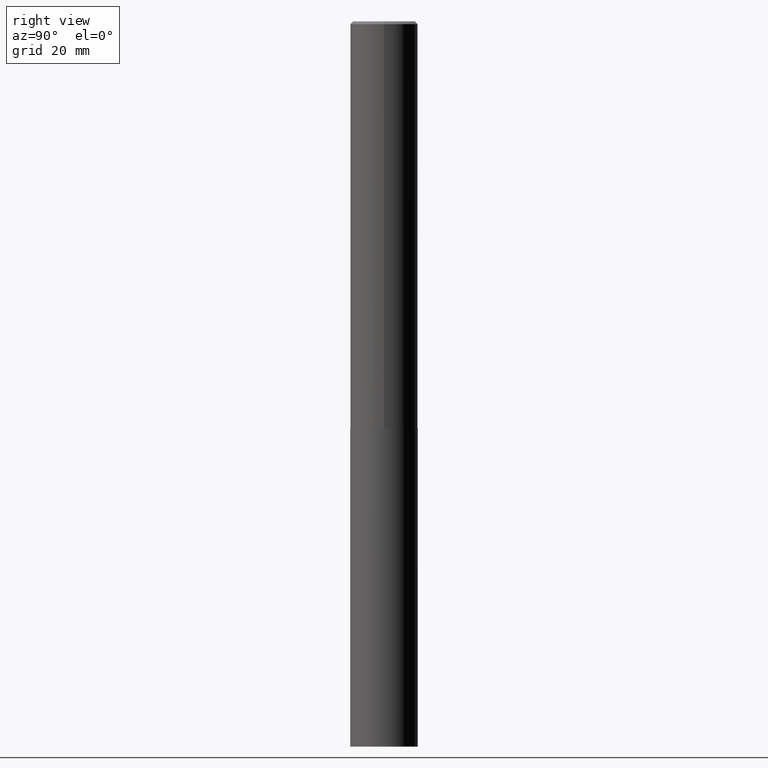
[diagram: clean part render]
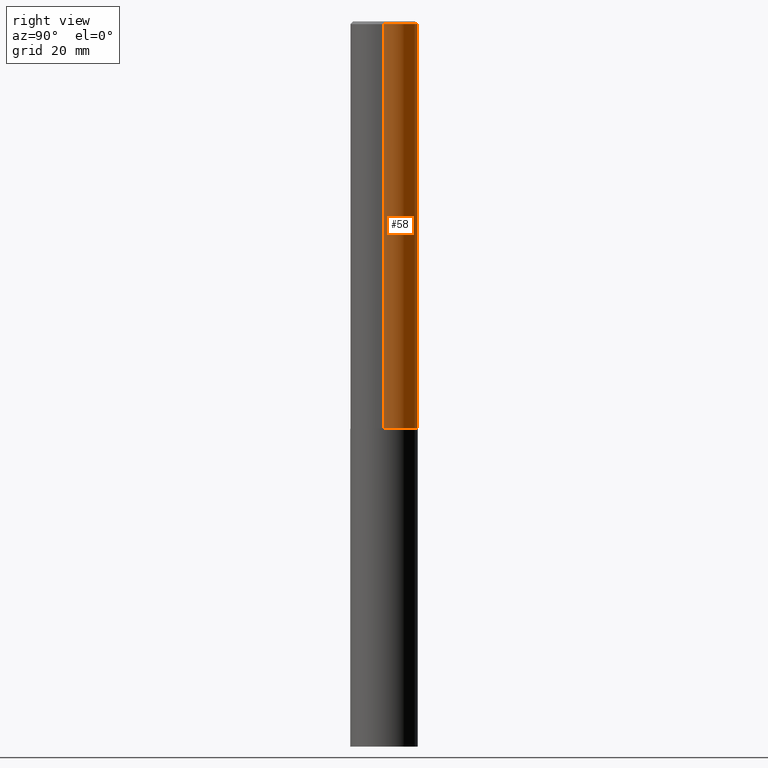
[diagram: same view with one face highlighted and labeled with its STEP entity id]
A machine part, right view. The second image highlights one B-rep face of the part: STEP entity #58.
In plain terms, the highlighted cylindrical surface (edge-blend (fillet) strip) has radius 10 mm, axis along (-0, 0, 1).
Its self-contained STEP definition (entity closure, byte-faithful):
#4 = CARTESIAN_POINT ( 'NONE',  ( 0.000000000000000000, 0.000000000000000000, 0.000000000000000000 ) ) ;
#12 = ORIENTED_EDGE ( 'NONE', *, *, #160, .T. ) ;
#34 = ORIENTED_EDGE ( 'NONE', *, *, #88, .F. ) ;
#42 = DIRECTION ( 'NONE',  ( -2.445468806185136597E-29, 3.491481338843145583E-15, 1.000000000000000000 ) ) ;
#47 = LINE ( 'NONE', #265, #310 ) ;
#56 = CIRCLE ( 'NONE', #288, 0.3937000000000006605 ) ;
#57 = VERTEX_POINT ( 'NONE', #202 ) ;
#58 = ADVANCED_FACE ( 'NONE', ( #343 ), #69, .T. ) ;
#63 = VERTEX_POINT ( 'NONE', #257 ) ;
#69 = CYLINDRICAL_SURFACE ( 'NONE', #284, 0.3937000000000003830 ) ;
#81 = LINE ( 'NONE', #133, #142 ) ;
#88 = EDGE_CURVE ( 'NONE', #57, #366, #117, .T. ) ;
#99 = CARTESIAN_POINT ( 'NONE',  ( 7.642090019328588649E-31, -1.091087918388488171E-16, -0.03125000000000014572 ) ) ;
#104 = CARTESIAN_POINT ( 'NONE',  ( 1.162355778267857779E-28, -1.659535995165536539E-14, -4.753100000000002545 ) ) ;
#117 = CIRCLE ( 'NONE', #332, 0.3937000000000001054 ) ;
#121 = ORIENTED_EDGE ( 'NONE', *, *, #141, .F. ) ;
#133 = CARTESIAN_POINT ( 'NONE',  ( -0.3937000000000003830, 2.797406750687517153E-15, -1.936584745033358137E-29 ) ) ;
#141 = EDGE_CURVE ( 'NONE', #63, #57, #47, .T. ) ;
#142 = VECTOR ( 'NONE', #186, 39.37007874015748143 ) ;
#153 = EDGE_CURVE ( 'NONE', #63, #313, #56, .T. ) ;
#160 = EDGE_CURVE ( 'NONE', #313, #366, #81, .T. ) ;
#163 = EDGE_LOOP ( 'NONE', ( #307, #12, #34, #121 ) ) ;
#186 = DIRECTION ( 'NONE',  ( -2.445468806185136877E-29, 3.491481338843145188E-15, 1.000000000000000000 ) ) ;
#202 = CARTESIAN_POINT ( 'NONE',  ( 0.3937000000000001054, -2.858301198043932712E-15, -0.03125000000000014572 ) ) ;
#207 = DIRECTION ( 'NONE',  ( -2.445468806185136597E-29, 3.491481338843145583E-15, 1.000000000000000000 ) ) ;
#226 = DIRECTION ( 'NONE',  ( 1.000000000000000000, -6.982962677686266711E-15, 0.000000000000000000 ) ) ;
#240 = DIRECTION ( 'NONE',  ( -2.445468806185136877E-29, 3.491481338843145188E-15, 1.000000000000000000 ) ) ;
#247 = CARTESIAN_POINT ( 'NONE',  ( -0.3937000000000001054, -5.554827621059586937E-15, -0.03125000000000014572 ) ) ;
#257 = CARTESIAN_POINT ( 'NONE',  ( 0.3937000000000006605, -1.934455235786044861E-14, -4.753100000000002545 ) ) ;
#259 = DIRECTION ( 'NONE',  ( 1.000000000000000000, -6.982962677686266711E-15, 4.876176775795935793E-29 ) ) ;
#265 = CARTESIAN_POINT ( 'NONE',  ( 0.3937000000000003830, -2.749192406205085978E-15, 1.919750796630861853E-29 ) ) ;
#273 = DIRECTION ( 'NONE',  ( -2.445468806185136597E-29, 3.491481338843145583E-15, 1.000000000000000000 ) ) ;
#284 = AXIS2_PLACEMENT_3D ( 'NONE', #4, #42, #259 ) ;
#288 = AXIS2_PLACEMENT_3D ( 'NONE', #104, #273, #298 ) ;
#289 = CARTESIAN_POINT ( 'NONE',  ( -0.3937000000000006605, -1.379795320096784508E-14, -4.753100000000002545 ) ) ;
#298 = DIRECTION ( 'NONE',  ( 1.000000000000000000, -6.982962677686261977E-15, 0.000000000000000000 ) ) ;
#307 = ORIENTED_EDGE ( 'NONE', *, *, #153, .T. ) ;
#310 = VECTOR ( 'NONE', #240, 39.37007874015748143 ) ;
#313 = VERTEX_POINT ( 'NONE', #289 ) ;
#332 = AXIS2_PLACEMENT_3D ( 'NONE', #99, #207, #226 ) ;
#343 = FACE_OUTER_BOUND ( 'NONE', #163, .T. ) ;
#366 = VERTEX_POINT ( 'NONE', #247 ) ;